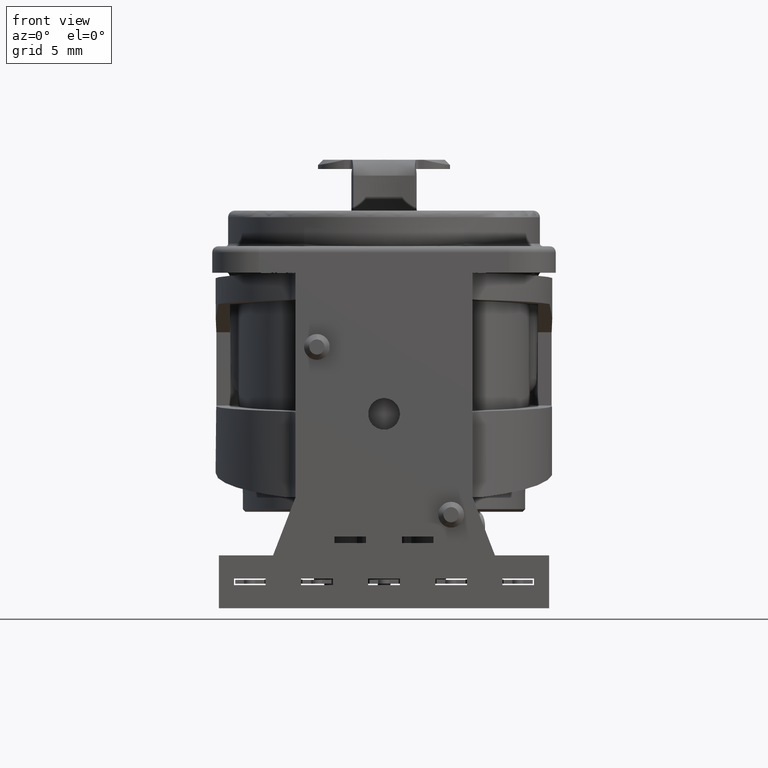
[diagram: clean part render]
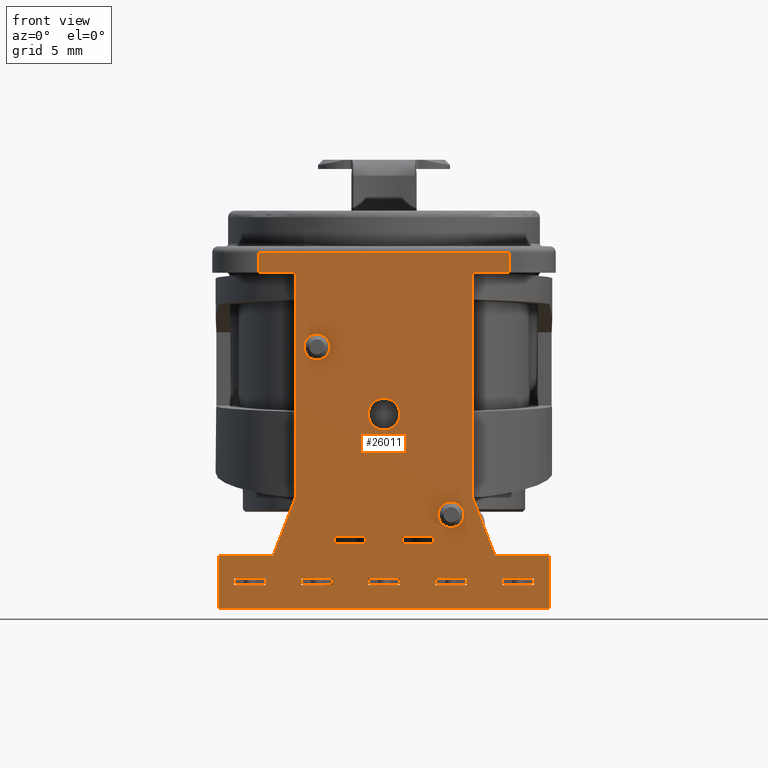
[diagram: same view with one face highlighted and labeled with its STEP entity id]
A machine part, front view. The second image highlights one B-rep face of the part: STEP entity #26011.
In plain terms, the highlighted planar face has unit normal (0, 1, 0).
Its self-contained STEP definition (entity closure, byte-faithful):
#1372=DIRECTION('',(-1.E0,0.E0,0.E0));
#1373=VECTOR('',#1372,2.8E0);
#1374=CARTESIAN_POINT('',(9.5E0,-1.46E1,0.E0));
#1375=LINE('',#1374,#1373);
#1408=DIRECTION('',(-1.E0,0.E0,0.E0));
#1409=VECTOR('',#1408,2.8E0);
#1410=CARTESIAN_POINT('',(-6.7E0,-1.46E1,0.E0));
#1411=LINE('',#1410,#1409);
#2089=CARTESIAN_POINT('',(0.E0,-1.46E1,-1.07E1));
#2090=DIRECTION('',(0.E0,-1.E0,0.E0));
#2091=DIRECTION('',(0.E0,0.E0,1.E0));
#2092=AXIS2_PLACEMENT_3D('',#2089,#2090,#2091);
#2094=CARTESIAN_POINT('',(0.E0,-1.46E1,-1.07E1));
#2095=DIRECTION('',(0.E0,-1.E0,0.E0));
#2096=DIRECTION('',(0.E0,0.E0,-1.E0));
#2097=AXIS2_PLACEMENT_3D('',#2094,#2095,#2096);
#2099=CARTESIAN_POINT('',(5.08E0,-1.46E1,-1.832E1));
#2100=DIRECTION('',(0.E0,-1.E0,0.E0));
#2101=DIRECTION('',(0.E0,0.E0,1.E0));
#2102=AXIS2_PLACEMENT_3D('',#2099,#2100,#2101);
#2104=CARTESIAN_POINT('',(5.08E0,-1.46E1,-1.832E1));
#2105=DIRECTION('',(0.E0,-1.E0,0.E0));
#2106=DIRECTION('',(0.E0,0.E0,-1.E0));
#2107=AXIS2_PLACEMENT_3D('',#2104,#2105,#2106);
#2109=CARTESIAN_POINT('',(-5.08E0,-1.46E1,-5.62E0));
#2110=DIRECTION('',(0.E0,-1.E0,0.E0));
#2111=DIRECTION('',(0.E0,0.E0,1.E0));
#2112=AXIS2_PLACEMENT_3D('',#2109,#2110,#2111);
#2114=CARTESIAN_POINT('',(-5.08E0,-1.46E1,-5.62E0));
#2115=DIRECTION('',(0.E0,-1.E0,0.E0));
#2116=DIRECTION('',(0.E0,0.E0,-1.E0));
#2117=AXIS2_PLACEMENT_3D('',#2114,#2115,#2116);
#2119=DIRECTION('',(0.E0,0.E0,-1.E0));
#2120=VECTOR('',#2119,5.E-1);
#2121=CARTESIAN_POINT('',(-1.36E0,-1.46E1,-1.9975E1));
#2122=LINE('',#2121,#2120);
#2123=DIRECTION('',(1.E0,0.E0,0.E0));
#2124=VECTOR('',#2123,2.4E0);
#2125=CARTESIAN_POINT('',(-3.76E0,-1.46E1,-1.9975E1));
#2126=LINE('',#2125,#2124);
#2127=DIRECTION('',(0.E0,0.E0,1.E0));
#2128=VECTOR('',#2127,5.E-1);
#2129=CARTESIAN_POINT('',(-3.76E0,-1.46E1,-2.0475E1));
#2130=LINE('',#2129,#2128);
#2131=DIRECTION('',(-1.E0,0.E0,0.E0));
#2132=VECTOR('',#2131,2.4E0);
#2133=CARTESIAN_POINT('',(-1.36E0,-1.46E1,-2.0475E1));
#2134=LINE('',#2133,#2132);
#2135=DIRECTION('',(0.E0,0.E0,-1.E0));
#2136=VECTOR('',#2135,5.E-1);
#2137=CARTESIAN_POINT('',(-8.96E0,-1.46E1,-2.315E1));
#2138=LINE('',#2137,#2136);
#2139=DIRECTION('',(1.E0,0.E0,0.E0));
#2140=VECTOR('',#2139,2.4E0);
#2141=CARTESIAN_POINT('',(-1.136E1,-1.46E1,-2.315E1));
#2142=LINE('',#2141,#2140);
#2143=DIRECTION('',(0.E0,0.E0,1.E0));
#2144=VECTOR('',#2143,5.E-1);
#2145=CARTESIAN_POINT('',(-1.136E1,-1.46E1,-2.365E1));
#2146=LINE('',#2145,#2144);
#2147=DIRECTION('',(-1.E0,0.E0,0.E0));
#2148=VECTOR('',#2147,2.4E0);
#2149=CARTESIAN_POINT('',(-8.96E0,-1.46E1,-2.365E1));
#2150=LINE('',#2149,#2148);
#2151=DIRECTION('',(0.E0,0.E0,-1.E0));
#2152=VECTOR('',#2151,5.E-1);
#2153=CARTESIAN_POINT('',(-3.88E0,-1.46E1,-2.315E1));
#2154=LINE('',#2153,#2152);
#2155=DIRECTION('',(1.E0,0.E0,0.E0));
#2156=VECTOR('',#2155,2.4E0);
#2157=CARTESIAN_POINT('',(-6.28E0,-1.46E1,-2.315E1));
#2158=LINE('',#2157,#2156);
#2159=DIRECTION('',(0.E0,0.E0,1.E0));
#2160=VECTOR('',#2159,5.E-1);
#2161=CARTESIAN_POINT('',(-6.28E0,-1.46E1,-2.365E1));
#2162=LINE('',#2161,#2160);
#2163=DIRECTION('',(-1.E0,0.E0,0.E0));
#2164=VECTOR('',#2163,2.4E0);
#2165=CARTESIAN_POINT('',(-3.88E0,-1.46E1,-2.365E1));
#2166=LINE('',#2165,#2164);
#2167=DIRECTION('',(0.E0,0.E0,1.E0));
#2168=VECTOR('',#2167,5.E-1);
#2169=CARTESIAN_POINT('',(-1.2E0,-1.46E1,-2.365E1));
#2170=LINE('',#2169,#2168);
#2171=DIRECTION('',(-1.E0,0.E0,0.E0));
#2172=VECTOR('',#2171,2.4E0);
#2173=CARTESIAN_POINT('',(1.2E0,-1.46E1,-2.365E1));
#2174=LINE('',#2173,#2172);
#2175=DIRECTION('',(0.E0,0.E0,-1.E0));
#2176=VECTOR('',#2175,5.E-1);
#2177=CARTESIAN_POINT('',(1.2E0,-1.46E1,-2.315E1));
#2178=LINE('',#2177,#2176);
#2179=DIRECTION('',(1.E0,0.E0,0.E0));
#2180=VECTOR('',#2179,2.4E0);
#2181=CARTESIAN_POINT('',(-1.2E0,-1.46E1,-2.315E1));
#2182=LINE('',#2181,#2180);
#2183=DIRECTION('',(1.E0,0.E0,0.E0));
#2184=VECTOR('',#2183,2.4E0);
#2185=CARTESIAN_POINT('',(1.36E0,-1.46E1,-1.9975E1));
#2186=LINE('',#2185,#2184);
#2187=DIRECTION('',(0.E0,0.E0,1.E0));
#2188=VECTOR('',#2187,5.E-1);
#2189=CARTESIAN_POINT('',(1.36E0,-1.46E1,-2.0475E1));
#2190=LINE('',#2189,#2188);
#2191=DIRECTION('',(-1.E0,0.E0,0.E0));
#2192=VECTOR('',#2191,2.4E0);
#2193=CARTESIAN_POINT('',(3.76E0,-1.46E1,-2.0475E1));
#2194=LINE('',#2193,#2192);
#2195=DIRECTION('',(0.E0,0.E0,-1.E0));
#2196=VECTOR('',#2195,5.E-1);
#2197=CARTESIAN_POINT('',(3.76E0,-1.46E1,-1.9975E1));
#2198=LINE('',#2197,#2196);
#2199=DIRECTION('',(1.E0,0.E0,0.E0));
#2200=VECTOR('',#2199,2.4E0);
#2201=CARTESIAN_POINT('',(8.96E0,-1.46E1,-2.315E1));
#2202=LINE('',#2201,#2200);
#2203=DIRECTION('',(0.E0,0.E0,1.E0));
#2204=VECTOR('',#2203,5.E-1);
#2205=CARTESIAN_POINT('',(8.96E0,-1.46E1,-2.365E1));
#2206=LINE('',#2205,#2204);
#2207=DIRECTION('',(-1.E0,0.E0,0.E0));
#2208=VECTOR('',#2207,2.4E0);
#2209=CARTESIAN_POINT('',(1.136E1,-1.46E1,-2.365E1));
#2210=LINE('',#2209,#2208);
#2211=DIRECTION('',(0.E0,0.E0,-1.E0));
#2212=VECTOR('',#2211,5.E-1);
#2213=CARTESIAN_POINT('',(1.136E1,-1.46E1,-2.315E1));
#2214=LINE('',#2213,#2212);
#2215=DIRECTION('',(1.E0,0.E0,0.E0));
#2216=VECTOR('',#2215,2.4E0);
#2217=CARTESIAN_POINT('',(3.88E0,-1.46E1,-2.315E1));
#2218=LINE('',#2217,#2216);
#2219=DIRECTION('',(0.E0,0.E0,1.E0));
#2220=VECTOR('',#2219,5.E-1);
#2221=CARTESIAN_POINT('',(3.88E0,-1.46E1,-2.365E1));
#2222=LINE('',#2221,#2220);
#2223=DIRECTION('',(-1.E0,0.E0,0.E0));
#2224=VECTOR('',#2223,2.4E0);
#2225=CARTESIAN_POINT('',(6.28E0,-1.46E1,-2.365E1));
#2226=LINE('',#2225,#2224);
#2227=DIRECTION('',(0.E0,0.E0,-1.E0));
#2228=VECTOR('',#2227,5.E-1);
#2229=CARTESIAN_POINT('',(6.28E0,-1.46E1,-2.315E1));
#2230=LINE('',#2229,#2228);
#2231=DIRECTION('',(0.E0,0.E0,-1.E0));
#2232=VECTOR('',#2231,1.7E1);
#2233=CARTESIAN_POINT('',(6.7E0,-1.46E1,0.E0));
#2234=LINE('',#2233,#2232);
#2235=DIRECTION('',(3.603992792022E-1,0.E0,-9.327981344056E-1));
#2236=VECTOR('',#2235,4.716990566028E0);
#2237=CARTESIAN_POINT('',(6.7E0,-1.46E1,-1.7E1));
#2238=LINE('',#2237,#2236);
#2239=DIRECTION('',(-1.E0,0.E0,0.E0));
#2240=VECTOR('',#2239,4.1E0);
#2241=CARTESIAN_POINT('',(1.25E1,-1.46E1,-2.14E1));
#2242=LINE('',#2241,#2240);
#2243=DIRECTION('',(0.E0,0.E0,1.E0));
#2244=VECTOR('',#2243,4.E0);
#2245=CARTESIAN_POINT('',(1.25E1,-1.46E1,-2.54E1));
#2246=LINE('',#2245,#2244);
#2247=DIRECTION('',(-1.E0,0.E0,0.E0));
#2248=VECTOR('',#2247,2.5E1);
#2249=CARTESIAN_POINT('',(1.25E1,-1.46E1,-2.54E1));
#2250=LINE('',#2249,#2248);
#2251=DIRECTION('',(0.E0,0.E0,1.E0));
#2252=VECTOR('',#2251,4.E0);
#2253=CARTESIAN_POINT('',(-1.25E1,-1.46E1,-2.54E1));
#2254=LINE('',#2253,#2252);
#2255=DIRECTION('',(1.E0,0.E0,0.E0));
#2256=VECTOR('',#2255,4.1E0);
#2257=CARTESIAN_POINT('',(-1.25E1,-1.46E1,-2.14E1));
#2258=LINE('',#2257,#2256);
#2259=DIRECTION('',(3.603992792022E-1,0.E0,9.327981344056E-1));
#2260=VECTOR('',#2259,4.716990566028E0);
#2261=CARTESIAN_POINT('',(-8.4E0,-1.46E1,-2.14E1));
#2262=LINE('',#2261,#2260);
#2263=DIRECTION('',(0.E0,0.E0,-1.E0));
#2264=VECTOR('',#2263,1.7E1);
#2265=CARTESIAN_POINT('',(-6.7E0,-1.46E1,0.E0));
#2266=LINE('',#2265,#2264);
#2267=DIRECTION('',(1.E0,0.E0,0.E0));
#2268=VECTOR('',#2267,1.899999999934E1);
#2269=CARTESIAN_POINT('',(-9.499999999739E0,-1.46E1,1.55E0));
#2270=LINE('',#2269,#2268);
#2271=DIRECTION('',(2.547238405866E-10,0.E0,-1.E0));
#2272=VECTOR('',#2271,1.55E0);
#2273=CARTESIAN_POINT('',(9.499999999605E0,-1.46E1,1.55E0));
#2274=LINE('',#2273,#2272);
#4803=DIRECTION('',(-1.685487591790E-10,0.E0,-1.E0));
#4804=VECTOR('',#4803,1.55E0);
#4805=CARTESIAN_POINT('',(-9.499999999739E0,-1.46E1,1.55E0));
#4806=LINE('',#4805,#4804);
#18819=CARTESIAN_POINT('',(-9.5E0,-1.46E1,0.E0));
#18820=VERTEX_POINT('',#18819);
#18822=CARTESIAN_POINT('',(9.5E0,-1.46E1,0.E0));
#18824=VERTEX_POINT('',#18822);
#19351=CARTESIAN_POINT('',(9.5E0,-1.46E1,1.55E0));
#19353=VERTEX_POINT('',#19351);
#19377=CARTESIAN_POINT('',(-9.5E0,-1.46E1,1.55E0));
#19378=VERTEX_POINT('',#19377);
#22079=CARTESIAN_POINT('',(1.25E1,-1.46E1,-2.14E1));
#22080=CARTESIAN_POINT('',(8.4E0,-1.46E1,-2.14E1));
#22081=VERTEX_POINT('',#22079);
#22082=VERTEX_POINT('',#22080);
#22089=CARTESIAN_POINT('',(-1.25E1,-1.46E1,-2.14E1));
#22090=CARTESIAN_POINT('',(-8.4E0,-1.46E1,-2.14E1));
#22091=VERTEX_POINT('',#22089);
#22092=VERTEX_POINT('',#22090);
#22099=CARTESIAN_POINT('',(1.25E1,-1.46E1,-2.54E1));
#22100=VERTEX_POINT('',#22099);
#22101=CARTESIAN_POINT('',(-1.25E1,-1.46E1,-2.54E1));
#22102=VERTEX_POINT('',#22101);
#22111=CARTESIAN_POINT('',(6.7E0,-1.46E1,-1.7E1));
#22112=VERTEX_POINT('',#22111);
#22113=CARTESIAN_POINT('',(-6.7E0,-1.46E1,-1.7E1));
#22114=VERTEX_POINT('',#22113);
#22115=CARTESIAN_POINT('',(3.88E0,-1.46E1,-2.315E1));
#22116=CARTESIAN_POINT('',(6.28E0,-1.46E1,-2.315E1));
#22117=VERTEX_POINT('',#22115);
#22118=VERTEX_POINT('',#22116);
#22119=CARTESIAN_POINT('',(6.28E0,-1.46E1,-2.365E1));
#22120=VERTEX_POINT('',#22119);
#22121=CARTESIAN_POINT('',(3.88E0,-1.46E1,-2.365E1));
#22122=VERTEX_POINT('',#22121);
#22123=CARTESIAN_POINT('',(8.96E0,-1.46E1,-2.315E1));
#22124=CARTESIAN_POINT('',(1.136E1,-1.46E1,-2.315E1));
#22125=VERTEX_POINT('',#22123);
#22126=VERTEX_POINT('',#22124);
#22127=CARTESIAN_POINT('',(1.136E1,-1.46E1,-2.365E1));
#22128=VERTEX_POINT('',#22127);
#22129=CARTESIAN_POINT('',(8.96E0,-1.46E1,-2.365E1));
#22130=VERTEX_POINT('',#22129);
#22131=CARTESIAN_POINT('',(1.36E0,-1.46E1,-1.9975E1));
#22132=CARTESIAN_POINT('',(3.76E0,-1.46E1,-1.9975E1));
#22133=VERTEX_POINT('',#22131);
#22134=VERTEX_POINT('',#22132);
#22135=CARTESIAN_POINT('',(3.76E0,-1.46E1,-2.0475E1));
#22136=VERTEX_POINT('',#22135);
#22137=CARTESIAN_POINT('',(1.36E0,-1.46E1,-2.0475E1));
#22138=VERTEX_POINT('',#22137);
#22139=CARTESIAN_POINT('',(-1.2E0,-1.46E1,-2.365E1));
#22140=CARTESIAN_POINT('',(-1.2E0,-1.46E1,-2.315E1));
#22141=VERTEX_POINT('',#22139);
#22142=VERTEX_POINT('',#22140);
#22143=CARTESIAN_POINT('',(1.2E0,-1.46E1,-2.315E1));
#22144=VERTEX_POINT('',#22143);
#22145=CARTESIAN_POINT('',(1.2E0,-1.46E1,-2.365E1));
#22146=VERTEX_POINT('',#22145);
#22147=CARTESIAN_POINT('',(-3.88E0,-1.46E1,-2.315E1));
#22148=CARTESIAN_POINT('',(-3.88E0,-1.46E1,-2.365E1));
#22149=VERTEX_POINT('',#22147);
#22150=VERTEX_POINT('',#22148);
#22151=CARTESIAN_POINT('',(-6.28E0,-1.46E1,-2.365E1));
#22152=VERTEX_POINT('',#22151);
#22153=CARTESIAN_POINT('',(-6.28E0,-1.46E1,-2.315E1));
#22154=VERTEX_POINT('',#22153);
#22155=CARTESIAN_POINT('',(-8.96E0,-1.46E1,-2.315E1));
#22156=CARTESIAN_POINT('',(-8.96E0,-1.46E1,-2.365E1));
#22157=VERTEX_POINT('',#22155);
#22158=VERTEX_POINT('',#22156);
#22159=CARTESIAN_POINT('',(-1.136E1,-1.46E1,-2.365E1));
#22160=VERTEX_POINT('',#22159);
#22161=CARTESIAN_POINT('',(-1.136E1,-1.46E1,-2.315E1));
#22162=VERTEX_POINT('',#22161);
#22163=CARTESIAN_POINT('',(-1.36E0,-1.46E1,-1.9975E1));
#22164=CARTESIAN_POINT('',(-1.36E0,-1.46E1,-2.0475E1));
#22165=VERTEX_POINT('',#22163);
#22166=VERTEX_POINT('',#22164);
#22167=CARTESIAN_POINT('',(-3.76E0,-1.46E1,-2.0475E1));
#22168=VERTEX_POINT('',#22167);
#22169=CARTESIAN_POINT('',(-3.76E0,-1.46E1,-1.9975E1));
#22170=VERTEX_POINT('',#22169);
#22339=CARTESIAN_POINT('',(-5.08E0,-1.46E1,-4.645E0));
#22340=CARTESIAN_POINT('',(-5.08E0,-1.46E1,-6.595E0));
#22341=VERTEX_POINT('',#22339);
#22342=VERTEX_POINT('',#22340);
#22343=CARTESIAN_POINT('',(5.08E0,-1.46E1,-1.7345E1));
#22344=CARTESIAN_POINT('',(5.08E0,-1.46E1,-1.9295E1));
#22345=VERTEX_POINT('',#22343);
#22346=VERTEX_POINT('',#22344);
#22363=CARTESIAN_POINT('',(0.E0,-1.46E1,-9.5E0));
#22364=CARTESIAN_POINT('',(0.E0,-1.46E1,-1.19E1));
#22365=VERTEX_POINT('',#22363);
#22366=VERTEX_POINT('',#22364);
#22449=CARTESIAN_POINT('',(-6.7E0,-1.46E1,0.E0));
#22451=VERTEX_POINT('',#22449);
#22453=CARTESIAN_POINT('',(6.7E0,-1.46E1,0.E0));
#22455=VERTEX_POINT('',#22453);
#25892=CARTESIAN_POINT('',(9.5E0,-1.46E1,4.7E0));
#25893=DIRECTION('',(0.E0,1.E0,0.E0));
#25894=DIRECTION('',(-1.E0,0.E0,0.E0));
#25895=AXIS2_PLACEMENT_3D('',#25892,#25893,#25894);
#25896=PLANE('',#25895);
#25897=ORIENTED_EDGE('',*,*,#24953,.T.);
#25898=ORIENTED_EDGE('',*,*,#24299,.T.);
#25900=ORIENTED_EDGE('',*,*,#25899,.T.);
#25902=ORIENTED_EDGE('',*,*,#25901,.F.);
#25904=ORIENTED_EDGE('',*,*,#25903,.F.);
#25906=ORIENTED_EDGE('',*,*,#25905,.T.);
#25908=ORIENTED_EDGE('',*,*,#25907,.T.);
#25910=ORIENTED_EDGE('',*,*,#25909,.T.);
#25912=ORIENTED_EDGE('',*,*,#25911,.T.);
#25914=ORIENTED_EDGE('',*,*,#25913,.F.);
#25915=ORIENTED_EDGE('',*,*,#24969,.T.);
#25917=ORIENTED_EDGE('',*,*,#25916,.F.);
#25918=ORIENTED_EDGE('',*,*,#25886,.T.);
#25920=ORIENTED_EDGE('',*,*,#25919,.T.);
#25921=EDGE_LOOP('',(#25897,#25898,#25900,#25902,#25904,#25906,#25908,#25910,
#25912,#25914,#25915,#25917,#25918,#25920));
#25922=FACE_OUTER_BOUND('',#25921,.F.);
#25924=ORIENTED_EDGE('',*,*,#25923,.T.);
#25926=ORIENTED_EDGE('',*,*,#25925,.T.);
#25927=EDGE_LOOP('',(#25924,#25926));
#25928=FACE_BOUND('',#25927,.F.);
#25930=ORIENTED_EDGE('',*,*,#25929,.T.);
#25932=ORIENTED_EDGE('',*,*,#25931,.T.);
#25933=EDGE_LOOP('',(#25930,#25932));
#25934=FACE_BOUND('',#25933,.F.);
#25936=ORIENTED_EDGE('',*,*,#25935,.F.);
#25938=ORIENTED_EDGE('',*,*,#25937,.F.);
#25940=ORIENTED_EDGE('',*,*,#25939,.F.);
#25942=ORIENTED_EDGE('',*,*,#25941,.F.);
#25943=EDGE_LOOP('',(#25936,#25938,#25940,#25942));
#25944=FACE_BOUND('',#25943,.F.);
#25946=ORIENTED_EDGE('',*,*,#25945,.F.);
#25948=ORIENTED_EDGE('',*,*,#25947,.F.);
#25950=ORIENTED_EDGE('',*,*,#25949,.F.);
#25952=ORIENTED_EDGE('',*,*,#25951,.F.);
#25953=EDGE_LOOP('',(#25946,#25948,#25950,#25952));
#25954=FACE_BOUND('',#25953,.F.);
#25956=ORIENTED_EDGE('',*,*,#25955,.F.);
#25958=ORIENTED_EDGE('',*,*,#25957,.F.);
#25960=ORIENTED_EDGE('',*,*,#25959,.F.);
#25962=ORIENTED_EDGE('',*,*,#25961,.F.);
#25963=EDGE_LOOP('',(#25956,#25958,#25960,#25962));
#25964=FACE_BOUND('',#25963,.F.);
#25966=ORIENTED_EDGE('',*,*,#25965,.F.);
#25968=ORIENTED_EDGE('',*,*,#25967,.F.);
#25970=ORIENTED_EDGE('',*,*,#25969,.F.);
#25972=ORIENTED_EDGE('',*,*,#25971,.F.);
#25973=EDGE_LOOP('',(#25966,#25968,#25970,#25972));
#25974=FACE_BOUND('',#25973,.F.);
#25976=ORIENTED_EDGE('',*,*,#25975,.F.);
#25978=ORIENTED_EDGE('',*,*,#25977,.F.);
#25980=ORIENTED_EDGE('',*,*,#25979,.F.);
#25982=ORIENTED_EDGE('',*,*,#25981,.F.);
#25983=EDGE_LOOP('',(#25976,#25978,#25980,#25982));
#25984=FACE_BOUND('',#25983,.F.);
#25986=ORIENTED_EDGE('',*,*,#25985,.F.);
#25988=ORIENTED_EDGE('',*,*,#25987,.F.);
#25990=ORIENTED_EDGE('',*,*,#25989,.F.);
#25992=ORIENTED_EDGE('',*,*,#25991,.F.);
#25993=EDGE_LOOP('',(#25986,#25988,#25990,#25992));
#25994=FACE_BOUND('',#25993,.F.);
#25996=ORIENTED_EDGE('',*,*,#25995,.F.);
#25998=ORIENTED_EDGE('',*,*,#25997,.F.);
#26000=ORIENTED_EDGE('',*,*,#25999,.F.);
#26002=ORIENTED_EDGE('',*,*,#26001,.F.);
#26003=EDGE_LOOP('',(#25996,#25998,#26000,#26002));
#26004=FACE_BOUND('',#26003,.F.);
#26006=ORIENTED_EDGE('',*,*,#26005,.T.);
#26008=ORIENTED_EDGE('',*,*,#26007,.T.);
#26009=EDGE_LOOP('',(#26006,#26008));
#26010=FACE_BOUND('',#26009,.F.);
#26011=ADVANCED_FACE('',(#25922,#25928,#25934,#25944,#25954,#25964,#25974,
#25984,#25994,#26004,#26010),#25896,.F.);
#2093=CIRCLE('',#2092,1.2E0);
#2098=CIRCLE('',#2097,1.2E0);
#2103=CIRCLE('',#2102,9.75E-1);
#2108=CIRCLE('',#2107,9.75E-1);
#2113=CIRCLE('',#2112,9.75E-1);
#2118=CIRCLE('',#2117,9.75E-1);
#24299=EDGE_CURVE('',#22455,#22112,#2234,.T.);
#24953=EDGE_CURVE('',#18824,#22455,#1375,.T.);
#24969=EDGE_CURVE('',#22451,#18820,#1411,.T.);
#25886=EDGE_CURVE('',#19378,#19353,#2270,.T.);
#25899=EDGE_CURVE('',#22112,#22082,#2238,.T.);
#25901=EDGE_CURVE('',#22081,#22082,#2242,.T.);
#25903=EDGE_CURVE('',#22100,#22081,#2246,.T.);
#25905=EDGE_CURVE('',#22100,#22102,#2250,.T.);
#25907=EDGE_CURVE('',#22102,#22091,#2254,.T.);
#25909=EDGE_CURVE('',#22091,#22092,#2258,.T.);
#25911=EDGE_CURVE('',#22092,#22114,#2262,.T.);
#25913=EDGE_CURVE('',#22451,#22114,#2266,.T.);
#25916=EDGE_CURVE('',#19378,#18820,#4806,.T.);
#25919=EDGE_CURVE('',#19353,#18824,#2274,.T.);
#25923=EDGE_CURVE('',#22345,#22346,#2103,.T.);
#25925=EDGE_CURVE('',#22346,#22345,#2108,.T.);
#25929=EDGE_CURVE('',#22341,#22342,#2113,.T.);
#25931=EDGE_CURVE('',#22342,#22341,#2118,.T.);
#25935=EDGE_CURVE('',#22165,#22166,#2122,.T.);
#25937=EDGE_CURVE('',#22170,#22165,#2126,.T.);
#25939=EDGE_CURVE('',#22168,#22170,#2130,.T.);
#25941=EDGE_CURVE('',#22166,#22168,#2134,.T.);
#25945=EDGE_CURVE('',#22157,#22158,#2138,.T.);
#25947=EDGE_CURVE('',#22162,#22157,#2142,.T.);
#25949=EDGE_CURVE('',#22160,#22162,#2146,.T.);
#25951=EDGE_CURVE('',#22158,#22160,#2150,.T.);
#25955=EDGE_CURVE('',#22149,#22150,#2154,.T.);
#25957=EDGE_CURVE('',#22154,#22149,#2158,.T.);
#25959=EDGE_CURVE('',#22152,#22154,#2162,.T.);
#25961=EDGE_CURVE('',#22150,#22152,#2166,.T.);
#25965=EDGE_CURVE('',#22141,#22142,#2170,.T.);
#25967=EDGE_CURVE('',#22146,#22141,#2174,.T.);
#25969=EDGE_CURVE('',#22144,#22146,#2178,.T.);
#25971=EDGE_CURVE('',#22142,#22144,#2182,.T.);
#25975=EDGE_CURVE('',#22133,#22134,#2186,.T.);
#25977=EDGE_CURVE('',#22138,#22133,#2190,.T.);
#25979=EDGE_CURVE('',#22136,#22138,#2194,.T.);
#25981=EDGE_CURVE('',#22134,#22136,#2198,.T.);
#25985=EDGE_CURVE('',#22125,#22126,#2202,.T.);
#25987=EDGE_CURVE('',#22130,#22125,#2206,.T.);
#25989=EDGE_CURVE('',#22128,#22130,#2210,.T.);
#25991=EDGE_CURVE('',#22126,#22128,#2214,.T.);
#25995=EDGE_CURVE('',#22117,#22118,#2218,.T.);
#25997=EDGE_CURVE('',#22122,#22117,#2222,.T.);
#25999=EDGE_CURVE('',#22120,#22122,#2226,.T.);
#26001=EDGE_CURVE('',#22118,#22120,#2230,.T.);
#26005=EDGE_CURVE('',#22365,#22366,#2093,.T.);
#26007=EDGE_CURVE('',#22366,#22365,#2098,.T.);